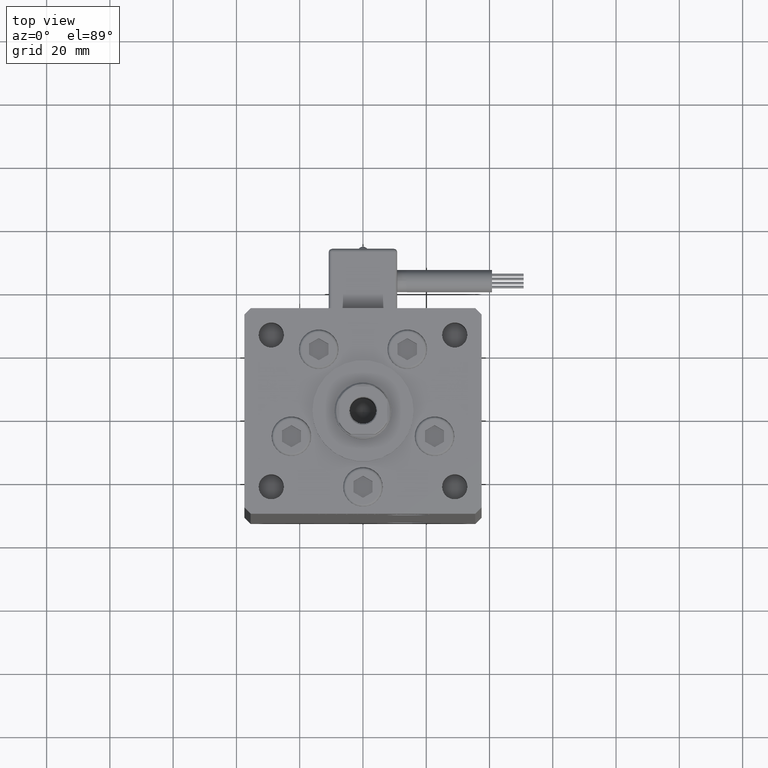
[diagram: clean part render]
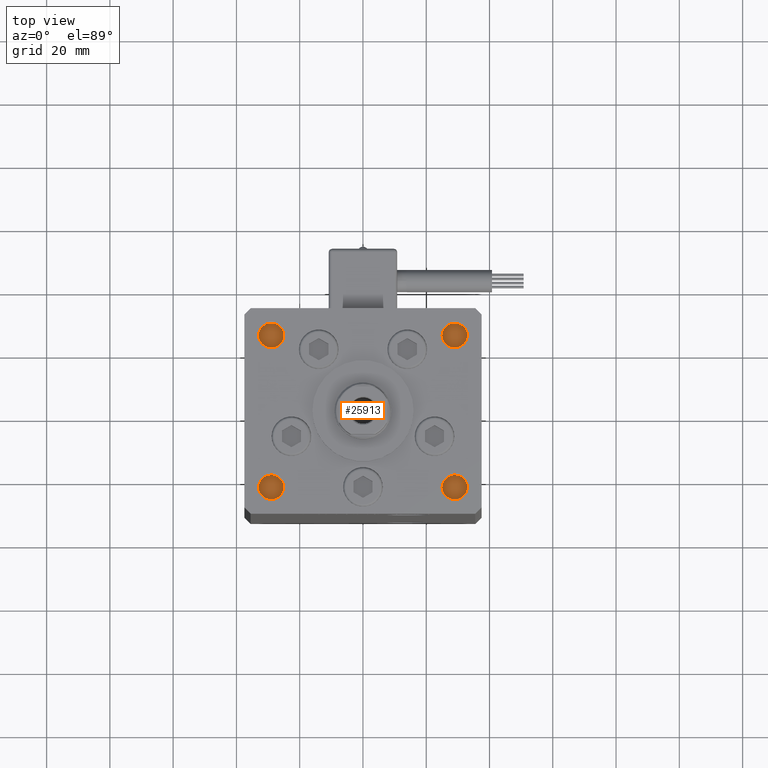
[diagram: same view with one face highlighted and labeled with its STEP entity id]
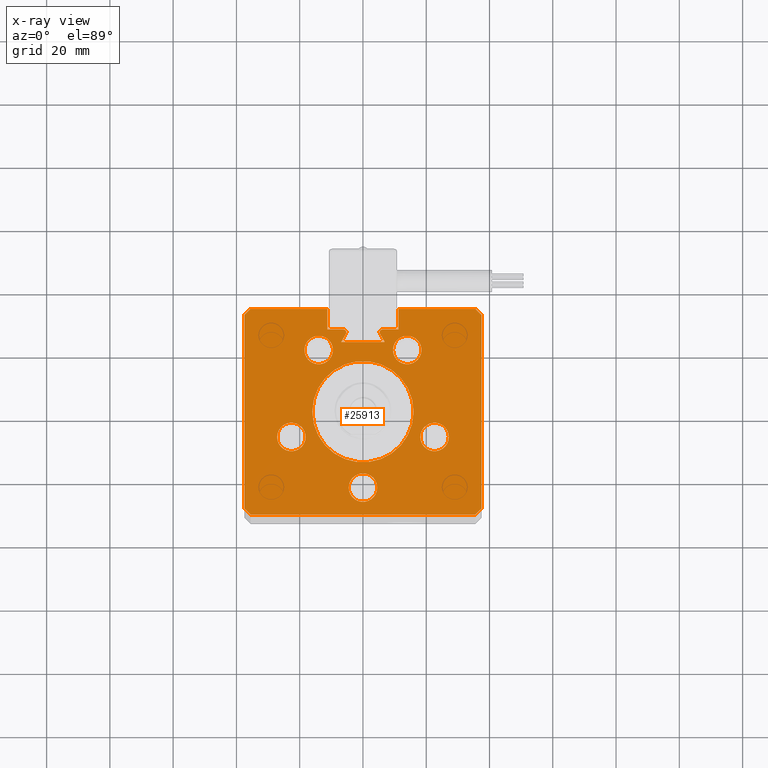
[diagram: x-ray of the same camera — body ghosted, the highlighted face saturated]
A machine part, top view. The second image highlights one B-rep face of the part: STEP entity #25913.
The next image is the same camera in x-ray: the body ghosted, the highlighted face saturated — about 0% of this face is hidden behind the body in this view.
In plain terms, the highlighted planar face has unit normal (0, 0, -1).
Its self-contained STEP definition (entity closure, byte-faithful):
#4 = CARTESIAN_POINT ( 'NONE',  ( 0.000000000000000000, 0.000000000000000000, 156.0000000000000000 ) ) ;
#39 = AXIS2_PLACEMENT_3D ( 'NONE', #44451, #31069, #52821 ) ;
#119 = DIRECTION ( 'NONE',  ( 1.000000000000000000, 0.000000000000000000, 0.000000000000000000 ) ) ;
#194 = EDGE_CURVE ( 'NONE', #40222, #15308, #23791, .T. ) ;
#723 = CARTESIAN_POINT ( 'NONE',  ( -5.375042956467946276, 24.59999999999899245, 156.0000000000000000 ) ) ;
#1360 = ORIENTED_EDGE ( 'NONE', *, *, #50625, .F. ) ;
#1577 = LINE ( 'NONE', #10751, #29528 ) ;
#1585 = EDGE_CURVE ( 'NONE', #44652, #32233, #30839, .T. ) ;
#1751 = EDGE_CURVE ( 'NONE', #26844, #14575, #31713, .T. ) ;
#2185 = EDGE_CURVE ( 'NONE', #54919, #14575, #37289, .T. ) ;
#2457 = VERTEX_POINT ( 'NONE', #37495 ) ;
#2868 = VERTEX_POINT ( 'NONE', #30884 ) ;
#3077 = ORIENTED_EDGE ( 'NONE', *, *, #26119, .F. ) ;
#3104 = CARTESIAN_POINT ( 'NONE',  ( 0.000000000000000000, 25.99999999999999289, 156.0000000000000000 ) ) ;
#3154 = CIRCLE ( 'NONE', #41449, 4.500000000000000888 ) ;
#3201 = LINE ( 'NONE', #7916, #27404 ) ;
#3503 = DIRECTION ( 'NONE',  ( 1.000000000000000000, 0.000000000000000000, 0.000000000000000000 ) ) ;
#3555 = CARTESIAN_POINT ( 'NONE',  ( 11.25000000000000178, 0.000000000000000000, 156.0000000000000000 ) ) ;
#3876 = VERTEX_POINT ( 'NONE', #18271 ) ;
#3904 = EDGE_CURVE ( 'NONE', #46211, #22971, #32482, .T. ) ;
#4465 = ORIENTED_EDGE ( 'NONE', *, *, #51074, .F. ) ;
#4764 = EDGE_CURVE ( 'NONE', #52979, #42341, #19359, .T. ) ;
#5123 = CARTESIAN_POINT ( 'NONE',  ( 0.000000000000000000, 0.000000000000000000, 156.0000000000000000 ) ) ;
#5846 = EDGE_LOOP ( 'NONE', ( #36197, #39261 ) ) ;
#6226 = DIRECTION ( 'NONE',  ( 0.000000000000000000, 0.000000000000000000, -1.000000000000000000 ) ) ;
#6628 = CARTESIAN_POINT ( 'NONE',  ( -37.50000000000000711, 30.50000000000000000, 156.0000000000000000 ) ) ;
#6942 = CARTESIAN_POINT ( 'NONE',  ( 0.000000000000000000, -24.00000000000000000, 156.0000000000000000 ) ) ;
#6996 = DIRECTION ( 'NONE',  ( 0.000000000000000000, 0.000000000000000000, 1.000000000000000000 ) ) ;
#7117 = CARTESIAN_POINT ( 'NONE',  ( -6.876153656360466826, 21.99999999999986855, 156.0000000000000000 ) ) ;
#7211 = CIRCLE ( 'NONE', #42848, 4.500000000000003553 ) ;
#7552 = EDGE_CURVE ( 'NONE', #12267, #35614, #28470, .T. ) ;
#7729 = DIRECTION ( 'NONE',  ( 0.7071067811865500152, -0.7071067811865451302, 0.000000000000000000 ) ) ;
#7916 = CARTESIAN_POINT ( 'NONE',  ( -35.50000000000000000, 32.49999999999999289, 156.0000000000000000 ) ) ;
#7970 = DIRECTION ( 'NONE',  ( 0.000000000000000000, 0.000000000000000000, 1.000000000000000000 ) ) ;
#7974 = EDGE_CURVE ( 'NONE', #2457, #45203, #37143, .T. ) ;
#8104 = DIRECTION ( 'NONE',  ( -0.000000000000000000, 0.000000000000000000, 1.000000000000000000 ) ) ;
#8190 = VERTEX_POINT ( 'NONE', #45635 ) ;
#9476 = PLANE ( 'NONE',  #19694 ) ;
#9572 = CARTESIAN_POINT ( 'NONE',  ( 22.62741699796951877, -8.000000000000000000, 156.0000000000000000 ) ) ;
#9702 = VECTOR ( 'NONE', #7729, 1000.000000000000114 ) ;
#9705 = EDGE_LOOP ( 'NONE', ( #1360, #16412 ) ) ;
#10124 = VERTEX_POINT ( 'NONE', #54513 ) ;
#10134 = EDGE_CURVE ( 'NONE', #11702, #45272, #3201, .T. ) ;
#10335 = VECTOR ( 'NONE', #31365, 1000.000000000000000 ) ;
#10751 = CARTESIAN_POINT ( 'NONE',  ( 37.49999999999999289, -30.50000000000000000, 156.0000000000000000 ) ) ;
#11093 = DIRECTION ( 'NONE',  ( 0.000000000000000000, 0.000000000000000000, 1.000000000000000000 ) ) ;
#11327 = CARTESIAN_POINT ( 'NONE',  ( -14.68339468389911495, 8.477461873366664236, 156.0000000000000000 ) ) ;
#11702 = VERTEX_POINT ( 'NONE', #36474 ) ;
#11762 = ORIENTED_EDGE ( 'NONE', *, *, #19437, .F. ) ;
#11841 = EDGE_CURVE ( 'NONE', #54055, #29998, #28373, .T. ) ;
#11976 = VECTOR ( 'NONE', #20267, 1000.000000000000000 ) ;
#11978 = ORIENTED_EDGE ( 'NONE', *, *, #44005, .F. ) ;
#12114 = CARTESIAN_POINT ( 'NONE',  ( -35.49999999999999289, -32.50000000000000000, 156.0000000000000000 ) ) ;
#12134 = VERTEX_POINT ( 'NONE', #48146 ) ;
#12245 = ORIENTED_EDGE ( 'NONE', *, *, #194, .T. ) ;
#12267 = VERTEX_POINT ( 'NONE', #47248 ) ;
#12436 = LINE ( 'NONE', #3555, #11976 ) ;
#12592 = ORIENTED_EDGE ( 'NONE', *, *, #3904, .T. ) ;
#13528 = DIRECTION ( 'NONE',  ( 1.000000000000000000, 0.000000000000000000, 0.000000000000000000 ) ) ;
#14226 = VECTOR ( 'NONE', #3503, 1000.000000000000000 ) ;
#14562 = DIRECTION ( 'NONE',  ( 1.000000000000000000, 0.000000000000000000, 0.000000000000000000 ) ) ;
#14575 = VERTEX_POINT ( 'NONE', #723 ) ;
#14867 = VECTOR ( 'NONE', #33827, 1000.000000000000000 ) ;
#15145 = CIRCLE ( 'NONE', #39, 4.500000000000000888 ) ;
#15308 = VERTEX_POINT ( 'NONE', #48180 ) ;
#15344 = CARTESIAN_POINT ( 'NONE',  ( 0.000000000000000000, -24.00000000000000000, 156.0000000000000000 ) ) ;
#15475 = CARTESIAN_POINT ( 'NONE',  ( 0.000000000000000000, 21.99999999999986855, 156.0000000000000000 ) ) ;
#15963 = EDGE_CURVE ( 'NONE', #35614, #8190, #55034, .T. ) ;
#16344 = CARTESIAN_POINT ( 'NONE',  ( -13.99106857963322170, 19.50000000000000000, 156.0000000000000000 ) ) ;
#16394 = ORIENTED_EDGE ( 'NONE', *, *, #2185, .T. ) ;
#16412 = ORIENTED_EDGE ( 'NONE', *, *, #1585, .F. ) ;
#16954 = CARTESIAN_POINT ( 'NONE',  ( 5.375042956467948052, 24.59999999999899245, 156.0000000000000000 ) ) ;
#16971 = EDGE_LOOP ( 'NONE', ( #4465, #3077 ) ) ;
#16994 = DIRECTION ( 'NONE',  ( 0.000000000000000000, 0.000000000000000000, -1.000000000000000000 ) ) ;
#17201 = DIRECTION ( 'NONE',  ( 0.000000000000000000, 0.000000000000000000, -1.000000000000000000 ) ) ;
#17372 = VECTOR ( 'NONE', #37708, 1000.000000000000114 ) ;
#17535 = ORIENTED_EDGE ( 'NONE', *, *, #15963, .T. ) ;
#17877 = DIRECTION ( 'NONE',  ( 1.000000000000000000, 0.000000000000000000, 0.000000000000000000 ) ) ;
#18262 = ORIENTED_EDGE ( 'NONE', *, *, #25615, .F. ) ;
#18271 = CARTESIAN_POINT ( 'NONE',  ( 11.24999999999999467, 32.49999999999999289, 156.0000000000000000 ) ) ;
#18899 = ORIENTED_EDGE ( 'NONE', *, *, #39236, .T. ) ;
#19359 = CIRCLE ( 'NONE', #48767, 4.499999999999997335 ) ;
#19437 = EDGE_CURVE ( 'NONE', #11702, #8190, #43563, .T. ) ;
#19694 = AXIS2_PLACEMENT_3D ( 'NONE', #4, #16994, #43220 ) ;
#20017 = ORIENTED_EDGE ( 'NONE', *, *, #4764, .F. ) ;
#20091 = DIRECTION ( 'NONE',  ( -1.000000000000000000, 0.000000000000000000, 0.000000000000000000 ) ) ;
#20115 = CARTESIAN_POINT ( 'NONE',  ( 13.99106857963322170, 19.50000000000000000, 156.0000000000000000 ) ) ;
#20267 = DIRECTION ( 'NONE',  ( -0.000000000000000000, -1.000000000000000000, 0.000000000000000000 ) ) ;
#20777 = VERTEX_POINT ( 'NONE', #39052 ) ;
#21338 = ORIENTED_EDGE ( 'NONE', *, *, #7552, .T. ) ;
#21843 = DIRECTION ( 'NONE',  ( -0.000000000000000000, 0.000000000000000000, 1.000000000000000000 ) ) ;
#21911 = AXIS2_PLACEMENT_3D ( 'NONE', #39198, #51747, #30264 ) ;
#22005 = FACE_OUTER_BOUND ( 'NONE', #52529, .T. ) ;
#22124 = VECTOR ( 'NONE', #17877, 1000.000000000000000 ) ;
#22537 = CIRCLE ( 'NONE', #34130, 16.00000000000000000 ) ;
#22971 = VERTEX_POINT ( 'NONE', #39783 ) ;
#23158 = EDGE_CURVE ( 'NONE', #12134, #30768, #25218, .T. ) ;
#23162 = VERTEX_POINT ( 'NONE', #46431 ) ;
#23322 = EDGE_CURVE ( 'NONE', #12267, #26844, #32935, .T. ) ;
#23334 = ORIENTED_EDGE ( 'NONE', *, *, #35450, .F. ) ;
#23388 = CIRCLE ( 'NONE', #30517, 0.9333333333340008142 ) ;
#23698 = AXIS2_PLACEMENT_3D ( 'NONE', #20115, #53332, #24018 ) ;
#23791 = LINE ( 'NONE', #45562, #43262 ) ;
#23792 = VERTEX_POINT ( 'NONE', #38748 ) ;
#23866 = CARTESIAN_POINT ( 'NONE',  ( -11.25000000000000178, 25.99999999999999289, 156.0000000000000000 ) ) ;
#23939 = DIRECTION ( 'NONE',  ( 1.000000000000000000, 0.000000000000000000, 0.000000000000000000 ) ) ;
#24018 = DIRECTION ( 'NONE',  ( 1.000000000000000000, 0.000000000000000000, 0.000000000000000000 ) ) ;
#24143 = CARTESIAN_POINT ( 'NONE',  ( 18.49106857963322526, 19.50000000000000000, 156.0000000000000000 ) ) ;
#24269 = EDGE_LOOP ( 'NONE', ( #49553, #20017 ) ) ;
#24501 = EDGE_CURVE ( 'NONE', #45970, #10124, #15145, .T. ) ;
#24929 = DIRECTION ( 'NONE',  ( -0.7071067811865500152, -0.7071067811865451302, 0.000000000000000000 ) ) ;
#25008 = VECTOR ( 'NONE', #44391, 1000.000000000000000 ) ;
#25045 = AXIS2_PLACEMENT_3D ( 'NONE', #6942, #7970, #23939 ) ;
#25218 = LINE ( 'NONE', #12114, #14226 ) ;
#25378 = FACE_BOUND ( 'NONE', #26602, .T. ) ;
#25387 = CARTESIAN_POINT ( 'NONE',  ( 0.000000000000000000, 0.000000000000000000, 156.0000000000000000 ) ) ;
#25553 = EDGE_CURVE ( 'NONE', #45272, #23792, #50829, .T. ) ;
#25615 = EDGE_CURVE ( 'NONE', #29998, #20777, #52757, .T. ) ;
#25659 = DIRECTION ( 'NONE',  ( 1.000000000000000000, 0.000000000000000000, 0.000000000000000000 ) ) ;
#25913 = ADVANCED_FACE ( 'NONE', ( #34583, #30380, #47422, #25378, #43502, #22005, #42409 ), #9476, .F. ) ;
#26026 = DIRECTION ( 'NONE',  ( 1.000000000000000000, 0.000000000000000000, 0.000000000000000000 ) ) ;
#26045 = EDGE_CURVE ( 'NONE', #42341, #52979, #54447, .T. ) ;
#26119 = EDGE_CURVE ( 'NONE', #2868, #26850, #36642, .T. ) ;
#26285 = DIRECTION ( 'NONE',  ( 0.000000000000000000, 0.000000000000000000, 1.000000000000000000 ) ) ;
#26602 = EDGE_LOOP ( 'NONE', ( #33349, #11978 ) ) ;
#26844 = VERTEX_POINT ( 'NONE', #52430 ) ;
#26850 = VERTEX_POINT ( 'NONE', #35697 ) ;
#26935 = CARTESIAN_POINT ( 'NONE',  ( 11.25000000000000178, 25.99999999999999289, 156.0000000000000000 ) ) ;
#27001 = AXIS2_PLACEMENT_3D ( 'NONE', #15344, #6996, #48566 ) ;
#27061 = EDGE_CURVE ( 'NONE', #22971, #54919, #53721, .T. ) ;
#27329 = VECTOR ( 'NONE', #20091, 1000.000000000000000 ) ;
#27364 = CARTESIAN_POINT ( 'NONE',  ( 37.50000000000000711, 30.50000000000000000, 156.0000000000000000 ) ) ;
#27404 = VECTOR ( 'NONE', #24929, 1000.000000000000114 ) ;
#27620 = ORIENTED_EDGE ( 'NONE', *, *, #23158, .T. ) ;
#28199 = ORIENTED_EDGE ( 'NONE', *, *, #11841, .F. ) ;
#28373 = LINE ( 'NONE', #50670, #9702 ) ;
#28470 = LINE ( 'NONE', #3104, #27329 ) ;
#28540 = DIRECTION ( 'NONE',  ( 2.275047181608927644E-16, -1.000000000000000000, 0.000000000000000000 ) ) ;
#28591 = VECTOR ( 'NONE', #28540, 1000.000000000000000 ) ;
#28681 = DIRECTION ( 'NONE',  ( 0.000000000000000000, 0.000000000000000000, 1.000000000000000000 ) ) ;
#29528 = VECTOR ( 'NONE', #43418, 1000.000000000000114 ) ;
#29700 = EDGE_CURVE ( 'NONE', #52679, #23162, #7211, .T. ) ;
#29998 = VERTEX_POINT ( 'NONE', #34490 ) ;
#30264 = DIRECTION ( 'NONE',  ( 1.000000000000000000, 0.000000000000000000, 0.000000000000000000 ) ) ;
#30367 = AXIS2_PLACEMENT_3D ( 'NONE', #36234, #31213, #39879 ) ;
#30380 = FACE_BOUND ( 'NONE', #16971, .T. ) ;
#30516 = ORIENTED_EDGE ( 'NONE', *, *, #23322, .F. ) ;
#30517 = AXIS2_PLACEMENT_3D ( 'NONE', #34519, #17201, #43158 ) ;
#30768 = VERTEX_POINT ( 'NONE', #52122 ) ;
#30829 = DIRECTION ( 'NONE',  ( 0.000000000000000000, 0.000000000000000000, 1.000000000000000000 ) ) ;
#30839 = CIRCLE ( 'NONE', #51299, 16.00000000000000000 ) ;
#30884 = CARTESIAN_POINT ( 'NONE',  ( -4.500000000000000000, -24.00000000000000000, 156.0000000000000000 ) ) ;
#31069 = DIRECTION ( 'NONE',  ( 0.000000000000000000, 0.000000000000000000, 1.000000000000000000 ) ) ;
#31213 = DIRECTION ( 'NONE',  ( 0.000000000000000000, 0.000000000000000000, 1.000000000000000000 ) ) ;
#31365 = DIRECTION ( 'NONE',  ( 1.000000000000000000, 0.000000000000000000, 0.000000000000000000 ) ) ;
#31455 = DIRECTION ( 'NONE',  ( 1.000000000000000000, 0.000000000000000000, 0.000000000000000000 ) ) ;
#31474 = ORIENTED_EDGE ( 'NONE', *, *, #24501, .F. ) ;
#31713 = CIRCLE ( 'NONE', #21911, 0.9333333333340008142 ) ;
#31750 = VECTOR ( 'NONE', #45642, 1000.000000000000000 ) ;
#31995 = EDGE_CURVE ( 'NONE', #20777, #30768, #1577, .T. ) ;
#32018 = CARTESIAN_POINT ( 'NONE',  ( -22.62741699796951877, -8.000000000000000000, 156.0000000000000000 ) ) ;
#32207 = CARTESIAN_POINT ( 'NONE',  ( 14.68339468389911850, 8.477461873366667788, 156.0000000000000000 ) ) ;
#32233 = VERTEX_POINT ( 'NONE', #35808 ) ;
#32329 = EDGE_LOOP ( 'NONE', ( #35741, #31474 ) ) ;
#32340 = ORIENTED_EDGE ( 'NONE', *, *, #31995, .F. ) ;
#32482 = LINE ( 'NONE', #32207, #32722 ) ;
#32510 = DIRECTION ( 'NONE',  ( -1.000000000000000000, 0.000000000000000000, 0.000000000000000000 ) ) ;
#32722 = VECTOR ( 'NONE', #49508, 1000.000000000000114 ) ;
#32935 = CIRCLE ( 'NONE', #34724, 0.9333333333340008142 ) ;
#33349 = ORIENTED_EDGE ( 'NONE', *, *, #29700, .F. ) ;
#33827 = DIRECTION ( 'NONE',  ( 0.000000000000000000, 1.000000000000000000, 0.000000000000000000 ) ) ;
#33955 = DIRECTION ( 'NONE',  ( 1.000000000000000000, 0.000000000000000000, 0.000000000000000000 ) ) ;
#34130 = AXIS2_PLACEMENT_3D ( 'NONE', #5123, #21843, #26026 ) ;
#34251 = CIRCLE ( 'NONE', #44047, 4.500000000000000888 ) ;
#34490 = CARTESIAN_POINT ( 'NONE',  ( 37.50000000000000711, 30.50000000000000000, 156.0000000000000000 ) ) ;
#34519 = CARTESIAN_POINT ( 'NONE',  ( 6.183333333334001480, 25.06666666666599141, 156.0000000000000000 ) ) ;
#34583 = FACE_BOUND ( 'NONE', #5846, .T. ) ;
#34724 = AXIS2_PLACEMENT_3D ( 'NONE', #53081, #6226, #14562 ) ;
#34881 = VECTOR ( 'NONE', #32510, 1000.000000000000000 ) ;
#35450 = EDGE_CURVE ( 'NONE', #46211, #15308, #23388, .T. ) ;
#35509 = DIRECTION ( 'NONE',  ( 1.000000000000000000, 0.000000000000000000, 0.000000000000000000 ) ) ;
#35614 = VERTEX_POINT ( 'NONE', #23866 ) ;
#35697 = CARTESIAN_POINT ( 'NONE',  ( 4.500000000000000000, -24.00000000000000000, 156.0000000000000000 ) ) ;
#35741 = ORIENTED_EDGE ( 'NONE', *, *, #44650, .F. ) ;
#35808 = CARTESIAN_POINT ( 'NONE',  ( -16.00000000000000000, 0.000000000000000000, 156.0000000000000000 ) ) ;
#36164 = ORIENTED_EDGE ( 'NONE', *, *, #1751, .F. ) ;
#36197 = ORIENTED_EDGE ( 'NONE', *, *, #54601, .F. ) ;
#36234 = CARTESIAN_POINT ( 'NONE',  ( -13.99106857963322170, 19.50000000000000000, 156.0000000000000000 ) ) ;
#36235 = ORIENTED_EDGE ( 'NONE', *, *, #10134, .T. ) ;
#36474 = CARTESIAN_POINT ( 'NONE',  ( -35.50000000000000000, 32.49999999999999289, 156.0000000000000000 ) ) ;
#36642 = CIRCLE ( 'NONE', #25045, 4.500000000000000000 ) ;
#37143 = CIRCLE ( 'NONE', #39850, 4.500000000000000888 ) ;
#37289 = LINE ( 'NONE', #11327, #31750 ) ;
#37495 = CARTESIAN_POINT ( 'NONE',  ( -27.12741699796952233, -8.000000000000000000, 156.0000000000000000 ) ) ;
#37708 = DIRECTION ( 'NONE',  ( 0.7071067811865474617, -0.7071067811865474617, 0.000000000000000000 ) ) ;
#38158 = CARTESIAN_POINT ( 'NONE',  ( -22.62741699796951877, -8.000000000000000000, 156.0000000000000000 ) ) ;
#38469 = ORIENTED_EDGE ( 'NONE', *, *, #27061, .T. ) ;
#38748 = CARTESIAN_POINT ( 'NONE',  ( -37.49999999999999289, -30.50000000000000000, 156.0000000000000000 ) ) ;
#39052 = CARTESIAN_POINT ( 'NONE',  ( 37.49999999999999289, -30.50000000000000000, 156.0000000000000000 ) ) ;
#39198 = CARTESIAN_POINT ( 'NONE',  ( -6.183333333334001480, 25.06666666666599141, 156.0000000000000000 ) ) ;
#39236 = EDGE_CURVE ( 'NONE', #3876, #40222, #12436, .T. ) ;
#39261 = ORIENTED_EDGE ( 'NONE', *, *, #7974, .F. ) ;
#39751 = CARTESIAN_POINT ( 'NONE',  ( -11.25000000000000178, 32.49999999999999289, 156.0000000000000000 ) ) ;
#39783 = CARTESIAN_POINT ( 'NONE',  ( 6.876153656360466826, 21.99999999999986855, 156.0000000000000000 ) ) ;
#39850 = AXIS2_PLACEMENT_3D ( 'NONE', #38158, #28681, #33955 ) ;
#39879 = DIRECTION ( 'NONE',  ( 1.000000000000000000, 0.000000000000000000, 0.000000000000000000 ) ) ;
#40222 = VERTEX_POINT ( 'NONE', #26935 ) ;
#40687 = EDGE_CURVE ( 'NONE', #23792, #12134, #50524, .T. ) ;
#41449 = AXIS2_PLACEMENT_3D ( 'NONE', #9572, #26285, #35509 ) ;
#41669 = CARTESIAN_POINT ( 'NONE',  ( -11.25000000000000178, 0.000000000000000000, 156.0000000000000000 ) ) ;
#42322 = CARTESIAN_POINT ( 'NONE',  ( -9.491068579633225255, 19.50000000000000000, 156.0000000000000000 ) ) ;
#42341 = VERTEX_POINT ( 'NONE', #42322 ) ;
#42399 = CIRCLE ( 'NONE', #23698, 4.500000000000003553 ) ;
#42409 = FACE_BOUND ( 'NONE', #9705, .T. ) ;
#42848 = AXIS2_PLACEMENT_3D ( 'NONE', #50882, #11093, #119 ) ;
#43158 = DIRECTION ( 'NONE',  ( 1.000000000000000000, 0.000000000000000000, 0.000000000000000000 ) ) ;
#43220 = DIRECTION ( 'NONE',  ( -1.000000000000000000, 0.000000000000000000, -0.000000000000000000 ) ) ;
#43262 = VECTOR ( 'NONE', #49474, 1000.000000000000000 ) ;
#43283 = CARTESIAN_POINT ( 'NONE',  ( -11.25000000000000178, 32.49999999999999289, 156.0000000000000000 ) ) ;
#43418 = DIRECTION ( 'NONE',  ( -0.7071067811865474617, -0.7071067811865474617, 0.000000000000000000 ) ) ;
#43502 = FACE_BOUND ( 'NONE', #24269, .T. ) ;
#43563 = LINE ( 'NONE', #43283, #22124 ) ;
#43625 = EDGE_CURVE ( 'NONE', #3876, #54055, #52019, .T. ) ;
#43933 = CIRCLE ( 'NONE', #27001, 4.500000000000000000 ) ;
#44005 = EDGE_CURVE ( 'NONE', #23162, #52679, #42399, .T. ) ;
#44047 = AXIS2_PLACEMENT_3D ( 'NONE', #32018, #48214, #31455 ) ;
#44391 = DIRECTION ( 'NONE',  ( -2.275047181608927644E-16, -1.000000000000000000, 0.000000000000000000 ) ) ;
#44451 = CARTESIAN_POINT ( 'NONE',  ( 22.62741699796951877, -8.000000000000000000, 156.0000000000000000 ) ) ;
#44650 = EDGE_CURVE ( 'NONE', #10124, #45970, #3154, .T. ) ;
#44652 = VERTEX_POINT ( 'NONE', #47509 ) ;
#44898 = ORIENTED_EDGE ( 'NONE', *, *, #25553, .T. ) ;
#45203 = VERTEX_POINT ( 'NONE', #52659 ) ;
#45272 = VERTEX_POINT ( 'NONE', #6628 ) ;
#45562 = CARTESIAN_POINT ( 'NONE',  ( 0.000000000000000000, 25.99999999999999289, 156.0000000000000000 ) ) ;
#45635 = CARTESIAN_POINT ( 'NONE',  ( -11.25000000000000178, 32.49999999999999289, 156.0000000000000000 ) ) ;
#45642 = DIRECTION ( 'NONE',  ( 0.4999999999999995559, 0.8660254037844389297, 0.000000000000000000 ) ) ;
#45970 = VERTEX_POINT ( 'NONE', #46617 ) ;
#46211 = VERTEX_POINT ( 'NONE', #16954 ) ;
#46431 = CARTESIAN_POINT ( 'NONE',  ( 9.491068579633218150, 19.50000000000000000, 156.0000000000000000 ) ) ;
#46617 = CARTESIAN_POINT ( 'NONE',  ( 18.12741699796951877, -8.000000000000000000, 156.0000000000000000 ) ) ;
#46669 = CARTESIAN_POINT ( 'NONE',  ( -18.49106857963321815, 19.50000000000000000, 156.0000000000000000 ) ) ;
#47248 = CARTESIAN_POINT ( 'NONE',  ( -6.183333333334001480, 25.99999999999999289, 156.0000000000000000 ) ) ;
#47422 = FACE_BOUND ( 'NONE', #32329, .T. ) ;
#47509 = CARTESIAN_POINT ( 'NONE',  ( 16.00000000000000000, 1.959434878635765131E-15, 156.0000000000000000 ) ) ;
#48146 = CARTESIAN_POINT ( 'NONE',  ( -35.49999999999999289, -32.50000000000000000, 156.0000000000000000 ) ) ;
#48180 = CARTESIAN_POINT ( 'NONE',  ( 6.183333333334001480, 25.99999999999999289, 156.0000000000000000 ) ) ;
#48214 = DIRECTION ( 'NONE',  ( 0.000000000000000000, 0.000000000000000000, 1.000000000000000000 ) ) ;
#48566 = DIRECTION ( 'NONE',  ( 1.000000000000000000, 0.000000000000000000, 0.000000000000000000 ) ) ;
#48767 = AXIS2_PLACEMENT_3D ( 'NONE', #16344, #30829, #13528 ) ;
#49474 = DIRECTION ( 'NONE',  ( -1.000000000000000000, 0.000000000000000000, 0.000000000000000000 ) ) ;
#49508 = DIRECTION ( 'NONE',  ( 0.4999999999999996114, -0.8660254037844388186, 0.000000000000000000 ) ) ;
#49553 = ORIENTED_EDGE ( 'NONE', *, *, #26045, .F. ) ;
#49594 = ORIENTED_EDGE ( 'NONE', *, *, #43625, .F. ) ;
#50524 = LINE ( 'NONE', #54178, #17372 ) ;
#50625 = EDGE_CURVE ( 'NONE', #32233, #44652, #22537, .T. ) ;
#50670 = CARTESIAN_POINT ( 'NONE',  ( 35.50000000000000000, 32.49999999999999289, 156.0000000000000000 ) ) ;
#50829 = LINE ( 'NONE', #54752, #28591 ) ;
#50882 = CARTESIAN_POINT ( 'NONE',  ( 13.99106857963322170, 19.50000000000000000, 156.0000000000000000 ) ) ;
#51074 = EDGE_CURVE ( 'NONE', #26850, #2868, #43933, .T. ) ;
#51299 = AXIS2_PLACEMENT_3D ( 'NONE', #25387, #8104, #25659 ) ;
#51747 = DIRECTION ( 'NONE',  ( 0.000000000000000000, 0.000000000000000000, -1.000000000000000000 ) ) ;
#51924 = ORIENTED_EDGE ( 'NONE', *, *, #40687, .T. ) ;
#52019 = LINE ( 'NONE', #39751, #10335 ) ;
#52122 = CARTESIAN_POINT ( 'NONE',  ( 35.49999999999999289, -32.50000000000000000, 156.0000000000000000 ) ) ;
#52430 = CARTESIAN_POINT ( 'NONE',  ( -5.250000000000000000, 25.06666666666599141, 156.0000000000000000 ) ) ;
#52529 = EDGE_LOOP ( 'NONE', ( #21338, #17535, #11762, #36235, #44898, #51924, #27620, #32340, #18262, #28199, #49594, #18899, #12245, #23334, #12592, #38469, #16394, #36164, #30516 ) ) ;
#52589 = CARTESIAN_POINT ( 'NONE',  ( 35.50000000000000000, 32.49999999999999289, 156.0000000000000000 ) ) ;
#52659 = CARTESIAN_POINT ( 'NONE',  ( -18.12741699796951877, -8.000000000000000000, 156.0000000000000000 ) ) ;
#52679 = VERTEX_POINT ( 'NONE', #24143 ) ;
#52757 = LINE ( 'NONE', #27364, #25008 ) ;
#52821 = DIRECTION ( 'NONE',  ( 1.000000000000000000, 0.000000000000000000, 0.000000000000000000 ) ) ;
#52979 = VERTEX_POINT ( 'NONE', #46669 ) ;
#53081 = CARTESIAN_POINT ( 'NONE',  ( -6.183333333334001480, 25.06666666666599141, 156.0000000000000000 ) ) ;
#53332 = DIRECTION ( 'NONE',  ( 0.000000000000000000, 0.000000000000000000, 1.000000000000000000 ) ) ;
#53721 = LINE ( 'NONE', #15475, #34881 ) ;
#54055 = VERTEX_POINT ( 'NONE', #52589 ) ;
#54178 = CARTESIAN_POINT ( 'NONE',  ( -37.49999999999999289, -30.50000000000000000, 156.0000000000000000 ) ) ;
#54447 = CIRCLE ( 'NONE', #30367, 4.499999999999997335 ) ;
#54513 = CARTESIAN_POINT ( 'NONE',  ( 27.12741699796952233, -8.000000000000000000, 156.0000000000000000 ) ) ;
#54601 = EDGE_CURVE ( 'NONE', #45203, #2457, #34251, .T. ) ;
#54752 = CARTESIAN_POINT ( 'NONE',  ( -37.50000000000000711, 30.50000000000000000, 156.0000000000000000 ) ) ;
#54919 = VERTEX_POINT ( 'NONE', #7117 ) ;
#55034 = LINE ( 'NONE', #41669, #14867 ) ;